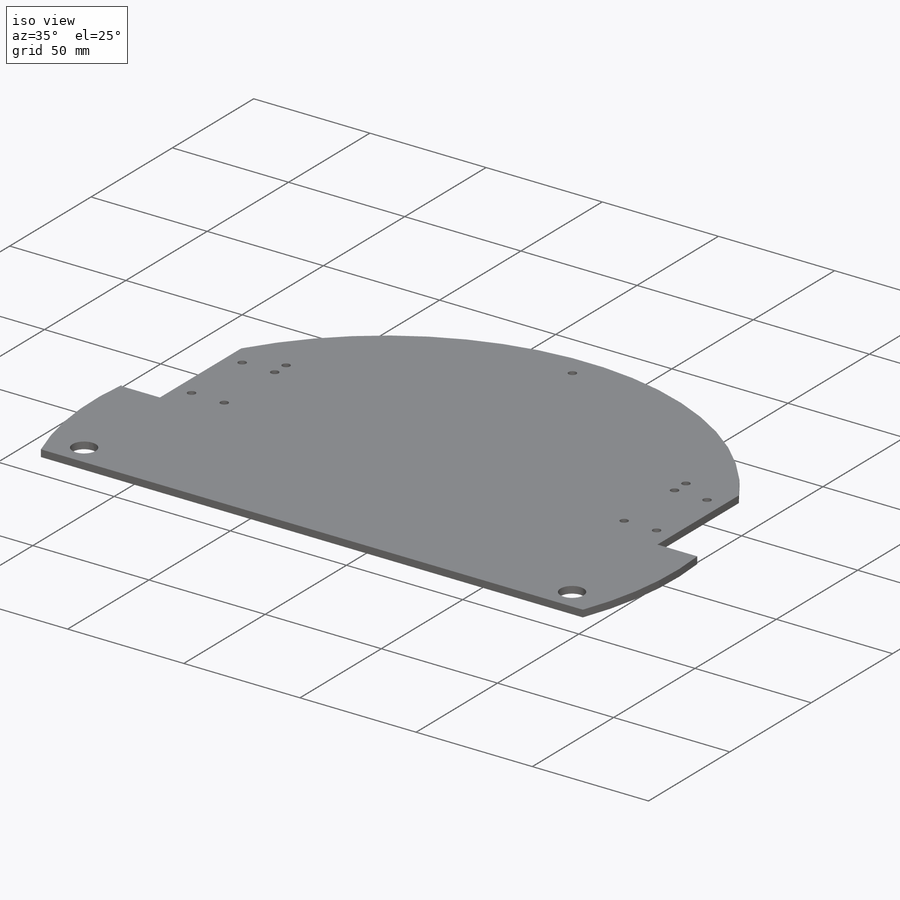
[diagram: iso view]
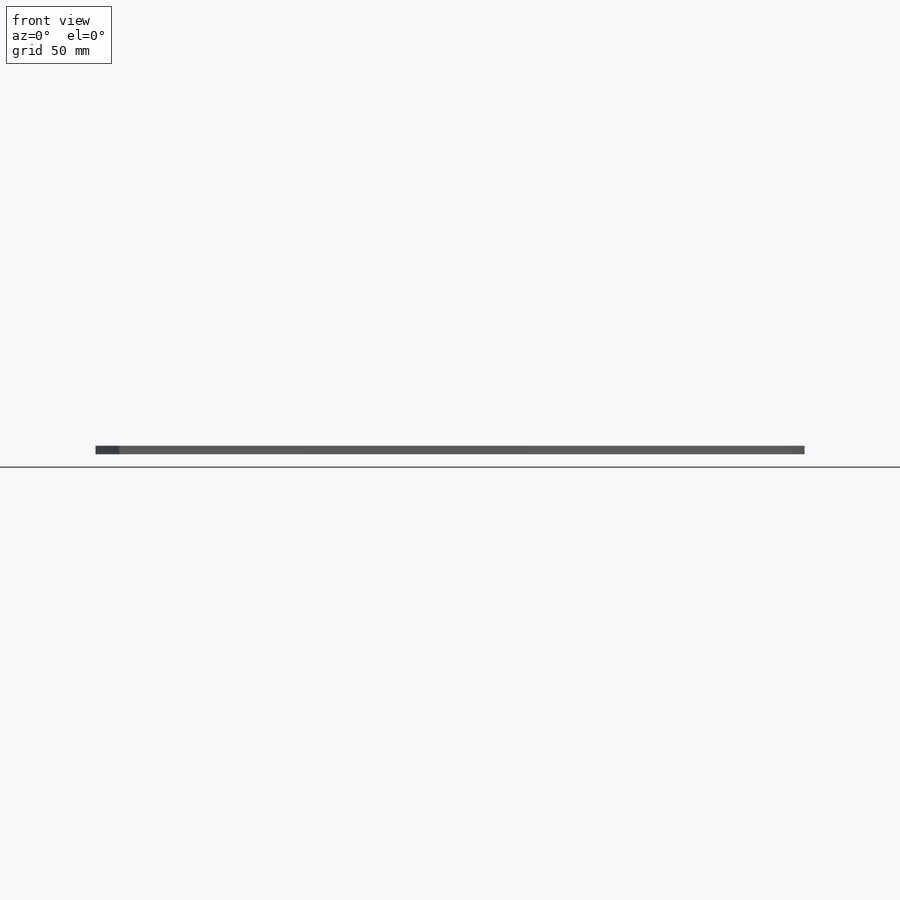
[diagram: front view]
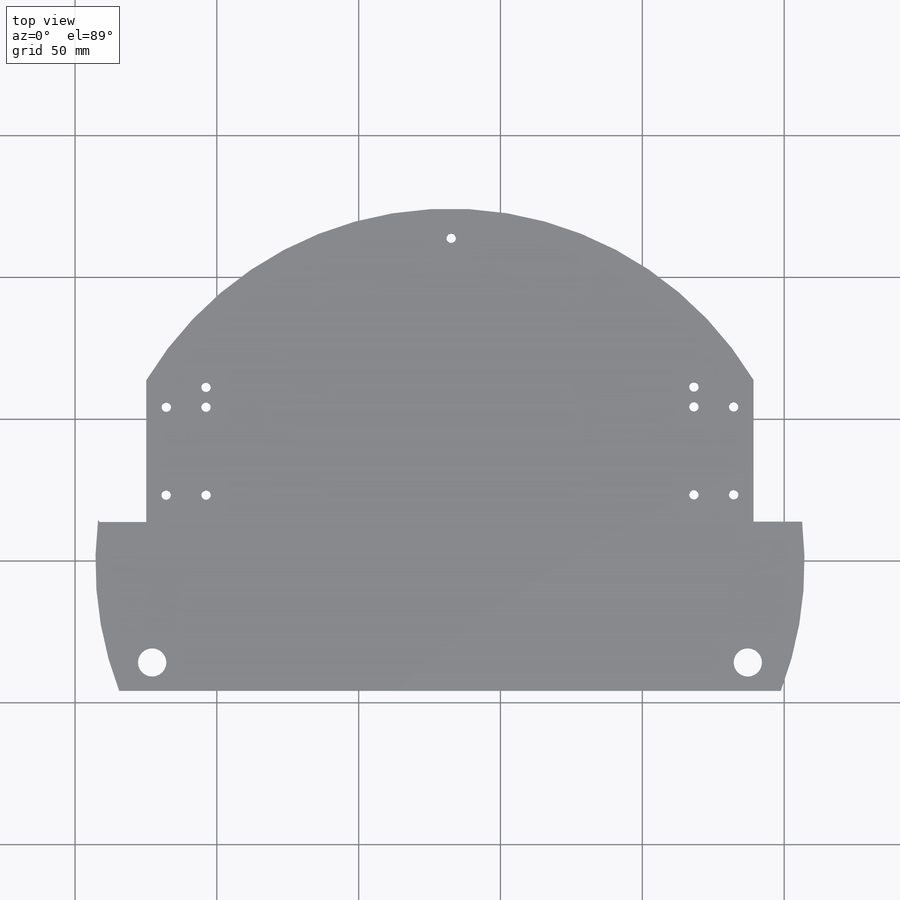
[diagram: top view]
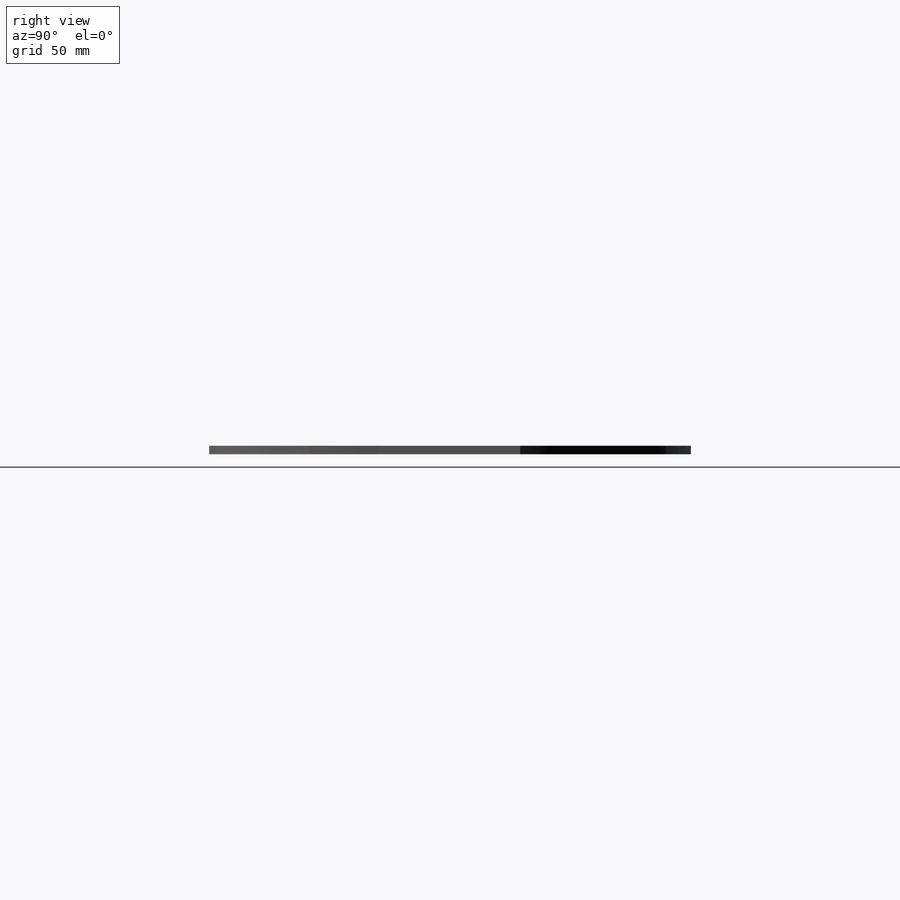
[diagram: right view]
SOLIDWORKS PART (.sldprt)
format: sldprt  version: not decoded by parser v0  size: 454,144 bytes
history: native  units: mm
features: sketch x4, cut_extrude x3, material x1, extrude x1 (+13 scaffold rows collapsed)
feature tree (22):
  scaffold x13  (default folders/planes/origin — collapsed)
  material  "Material <not specified>"
  sketch  "Sketch2"  dims[D1=250.0mm]
  extrude  "Boss-Extrude1"  Depth=3mm
  sketch  "Sketch3"  dims[D1=45.0mm]
  cut_extrude  "Cut-Extrude1"  Depth=3mm
  sketch  "Sketch4"  dims[c1.D1=3.3mm c1.D3=~2.566502mm c1.D8=3.3mm c1.D10=0.5mm c1.D11=~9.292551mm c1.D2=100.0mm c2.D3=31.0mm c2.D4=31.0mm c2.D5=0.0mm c2.D6=14.0mm c2.D7=100.0mm c2.D8=14.0mm c2.D9=100.0mm c2.D10=105.0mm c2.D11=105.0mm c2.D12=10.0mm c2.D13=10.0mm c2.D14=50.0mm c2.D15=15.0mm c2.D16=9.5mm c2.D17=125.0mm c3.D15=7.0mm c3.D16=7.0mm c3.D17=14.0mm c3.D18=31.0mm c3.D19=0.0mm c3.D20=50.0mm c3.D21=~9.500087mm c3.D22=9.5mm]
  cut_extrude  "Cut-Extrude2"  Depth=10mm
  sketch  "Sketch6"  dims[c1.D1=3.3mm c1.D2=3.3mm c1.D5=3.3mm c1.D6=3.3mm c1.D8=~2.423976mm c1.D9=3.3mm c2.D1=109.5mm c2.D2=~214.073573mm c2.D3=20.0mm c2.D4=20.0mm c2.D5=7.0mm c2.D6=~1.073573mm c3.D3=0.0mm c3.D4=7.0mm c3.D6=0.0mm c3.D7=~214.073573mm c3.D8=107.5mm c3.D9=100.0mm]
  cut_extrude  "Cut-Extrude3"  Depth=100mm
decode coverage: 8 of 8 modeling features carry decoded parameters
note: ~ marks probable driven/reference dimensions
note: suppression state not decoded; provenance and decode notes live in map.json
